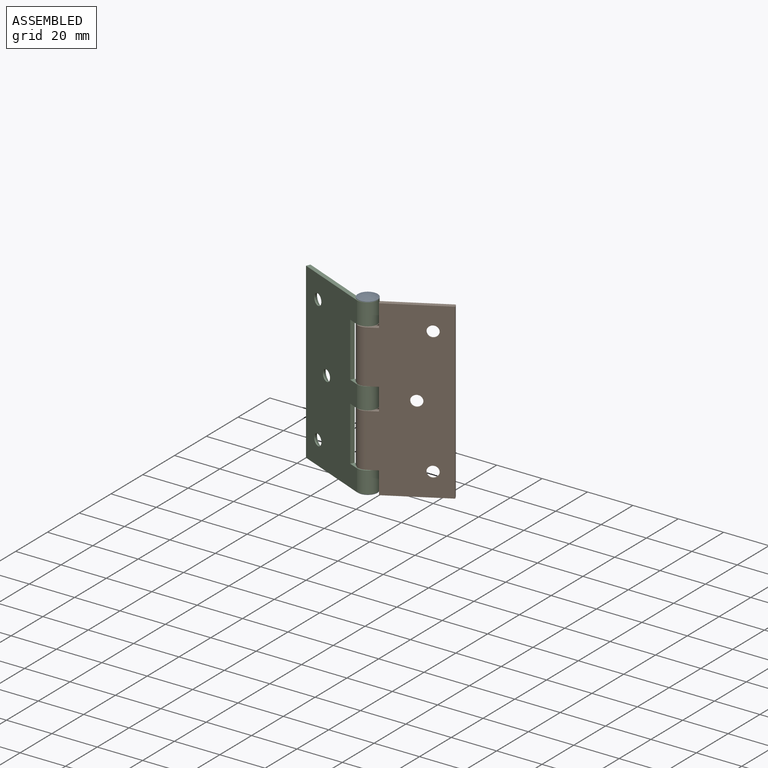
[diagram: assembled view]
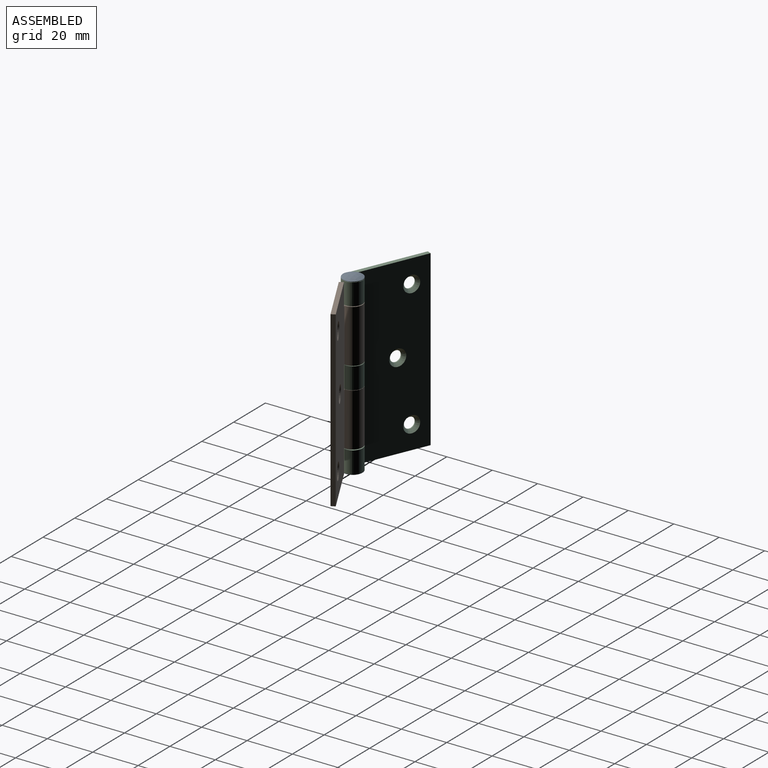
[diagram: assembled view, second angle]
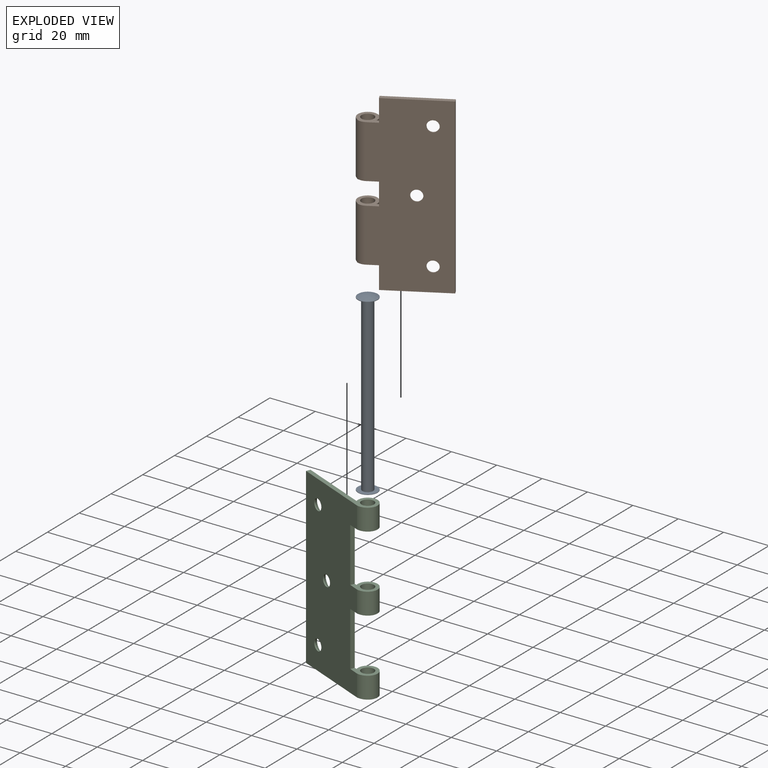
[diagram: exploded view]
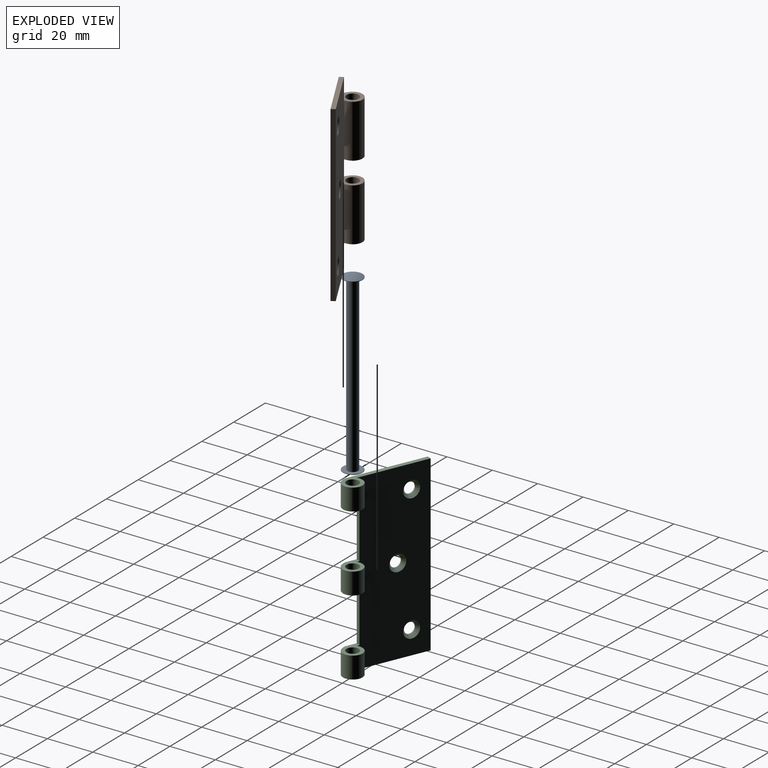
[diagram: exploded view, second angle]
ASSEMBLY  parts=3 mates=2
PART A: 7 faces, bbox 8.7x8.7x79.2 mm
  f0: cylinder r=4.32mm len=8.64mm, axis (0,0,1), area 5.4mm2, adj f1,f6
  f1: sphere r=8.86mm, area 62.5mm2, adj f0
  f2: cylinder r=2.38mm len=76.56mm, axis (0,0,1), area 1145.4mm2, adj f5,f6
  f3: sphere r=8.86mm, area 62.5mm2, adj f4
  f4: cylinder r=4.32mm len=8.64mm, axis (0,0,1), area 5.4mm2, adj f3,f5
  f5: plane 8.64x8.64mm, normal (0,0,1), area 40.8mm2, adj f2,f4
  f6: plane 8.64x8.64mm, normal (0,0,-1), area 40.8mm2, adj f0,f2
PART B: 26 faces, bbox 36.6x8.9x76.5 mm
  f0: cone r=2.41mm half-angle=40deg, axis (0,1,0), area 35.6mm2, adj f1,f10
  f1: cylinder r=2.41mm len=4.83mm, axis (0,1,0), area 7.1mm2, adj f0,f19
  f2: cone r=2.41mm half-angle=40deg, axis (0,1,0), area 35.6mm2, adj f3,f10
  f3: cylinder r=2.41mm len=4.83mm, axis (0,1,0), area 7.1mm2, adj f2,f19
  f4: cone r=2.41mm half-angle=40deg, axis (0,1,0), area 35.6mm2, adj f5,f10
  f5: cylinder r=2.41mm len=4.83mm, axis (0,1,0), area 7.1mm2, adj f4,f19
  f6: cylinder r=4.32mm len=23.46mm, axis (0,0,-1), area 455.5mm2, adj f10,f13,f14,f25
  f7: cylinder r=4.32mm len=23.46mm, axis (0,0,-1), area 455.5mm2, adj f10,f15,f16,f24
  f8: cylinder r=2.74mm len=23.46mm, axis (0,0,1), area 404.4mm2, adj f13,f14
  f9: cylinder r=2.74mm len=23.46mm, axis (0,0,1), area 404.4mm2, adj f15,f16
  f10: plane 76.45x28.86mm, normal (0,1,0), area 2048.4mm2, adj f0,f2,f4,f6,f7,f13,f14,f15
  f11: cylinder r=4.57mm len=23.46mm, axis (0,0,1), area 99.5mm2, adj f15,f16,f19,f24
  f12: cylinder r=4.57mm len=23.46mm, axis (0,0,1), area 99.5mm2, adj f13,f14,f19,f25
  f13: plane 8.89x8.89mm, normal (0,0,1), area 40.8mm2, adj f6,f8,f10,f12,f19,f21,f25
  f14: plane 8.89x8.89mm, normal (0,0,-1), area 40.8mm2, adj f6,f8,f10,f12,f19,f22,f25
  f15: plane 8.89x8.89mm, normal (0,0,1), area 40.8mm2, adj f7,f9,f10,f11,f19,f22,f24
  f16: plane 8.89x8.89mm, normal (0,0,-1), area 40.8mm2, adj f7,f9,f10,f11,f19,f23,f24
  f17: plane 27.69x1.91mm, normal (0,0,-1), area 52.7mm2, adj f10,f19,f20,f23
  f18: plane 27.69x1.91mm, normal (0,0,1), area 52.7mm2, adj f10,f19,f20,f21
  f19: plane 76.45x32.26mm, normal (0,-1,0), area 2276.4mm2, adj f1,f3,f5,f11,f12,f13,f14,f15
  f20: plane 76.45x1.91mm, normal (1,0,0), area 145.6mm2, adj f10,f17,f18,f19
  f21: plane 9.84x1.91mm, normal (-1,0,0), area 18.7mm2, adj f10,f13,f18,f19
  f22: plane 9.84x1.91mm, normal (-1,0,0), area 18.7mm2, adj f10,f14,f15,f19
  f23: plane 9.84x1.91mm, normal (-1,0,0), area 18.7mm2, adj f10,f16,f17,f19
  f24: plane 23.46x0.32mm, normal (0,1,0), area 7.6mm2, adj f7,f11,f15,f16
  f25: plane 23.46x0.32mm, normal (0,1,0), area 7.6mm2, adj f6,f12,f13,f14
PART C: 26 faces, bbox 39.1x8.9x76.5 mm
  f0: cone r=2.41mm half-angle=40deg, axis (0,1,0), area 35.6mm2, adj f4,f20
  f1: cone r=2.41mm half-angle=40deg, axis (0,1,0), area 35.6mm2, adj f5,f20
  f2: cone r=2.41mm half-angle=40deg, axis (0,1,0), area 35.6mm2, adj f3,f20
  f3: cylinder r=2.41mm len=4.83mm, axis (0,1,0), area 7.1mm2, adj f2,f19
  f4: cylinder r=2.41mm len=4.83mm, axis (0,1,0), area 7.1mm2, adj f0,f19
  f5: cylinder r=2.41mm len=4.83mm, axis (0,1,0), area 7.1mm2, adj f1,f19
  f6: cylinder r=4.32mm len=9.53mm, axis (0,0,-1), area 184.9mm2, adj f12,f15,f20,f23
  f7: cylinder r=4.32mm len=9.53mm, axis (0,0,-1), area 184.9mm2, adj f13,f16,f20,f24
  f8: cylinder r=4.32mm len=9.53mm, axis (0,0,-1), area 184.9mm2, adj f14,f17,f20,f25
  f9: cylinder r=2.74mm len=9.53mm, axis (0,0,-1), area 164.2mm2, adj f14,f17
  f10: cylinder r=2.74mm len=9.53mm, axis (0,0,-1), area 164.2mm2, adj f12,f15
  f11: cylinder r=2.74mm len=9.53mm, axis (0,0,-1), area 164.2mm2, adj f13,f16
  f12: plane 39.12x8.89mm, normal (0,0,1), area 97.6mm2, adj f6,f10,f18,f19,f20,f23
  f13: plane 39.12x8.89mm, normal (0,0,-1), area 97.6mm2, adj f7,f11,f18,f19,f20,f24
  f14: plane 8.89x8.89mm, normal (0,0,1), area 40.1mm2, adj f8,f9,f19,f20,f21,f25
  f15: plane 8.89x8.89mm, normal (0,0,-1), area 40.1mm2, adj f6,f10,f19,f20,f21,f23
  f16: plane 8.89x8.89mm, normal (0,0,1), area 40.1mm2, adj f7,f11,f19,f20,f22,f24
  f17: plane 8.89x8.89mm, normal (0,0,-1), area 40.1mm2, adj f8,f9,f19,f20,f22,f25
  f18: plane 76.45x1.91mm, normal (-1,0,0), area 145.6mm2, adj f12,f13,f19,f20
  f19: plane 76.45x34.8mm, normal (0,-1,0), area 2386.7mm2, adj f3,f4,f5,f12,f13,f14,f15,f16
  f20: plane 76.45x31.4mm, normal (0,1,0), area 2221mm2, adj f0,f1,f2,f6,f7,f8,f12,f13
  f21: plane 23.94x1.91mm, normal (1,0,0), area 45.6mm2, adj f14,f15,f19,f20
  f22: plane 23.94x1.91mm, normal (1,0,0), area 45.6mm2, adj f16,f17,f19,f20
  f23: cylinder r=5.12mm len=9.53mm, axis (0,0,-1), area 37.1mm2, adj f6,f12,f15,f19
  f24: cylinder r=5.12mm len=9.53mm, axis (0,0,-1), area 37.1mm2, adj f7,f13,f16,f19
  f25: cylinder r=5.12mm len=9.53mm, axis (0,0,-1), area 37.1mm2, adj f8,f14,f17,f19
PLACE A at identity fixed
PLACE B rot(axis=(0,0,1),28.8deg) t=(2.2,0.57,0.01)mm
PLACE C rot(axis=(0,0,-1),23.1deg) t=(-1.79,0.37,-0.05)mm
MATE revolute A.f0 <-> B.f8  axis (0,0,1) through (0,4.57,0)mm
MATE revolute C.f6 <-> A.f0  axis (0,0,-1) through (0,4.57,-38.28)mm
